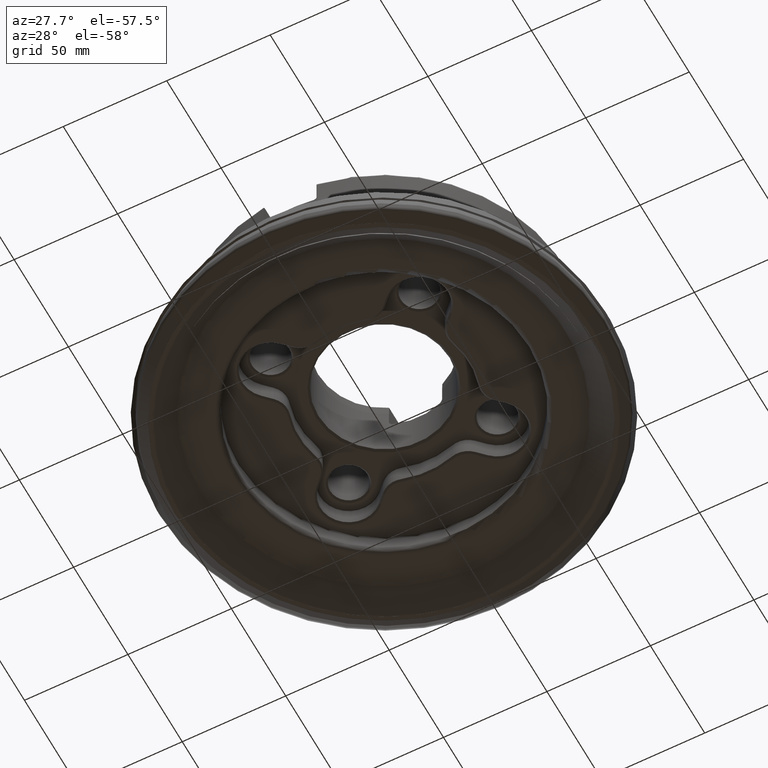
[diagram: clean part render]
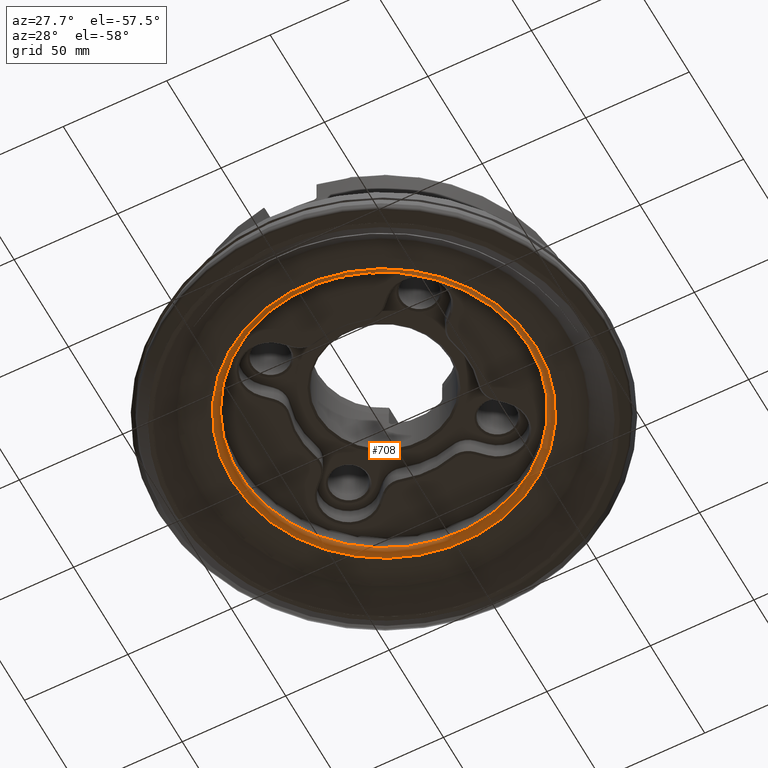
[diagram: same view with one face highlighted and labeled with its STEP entity id]
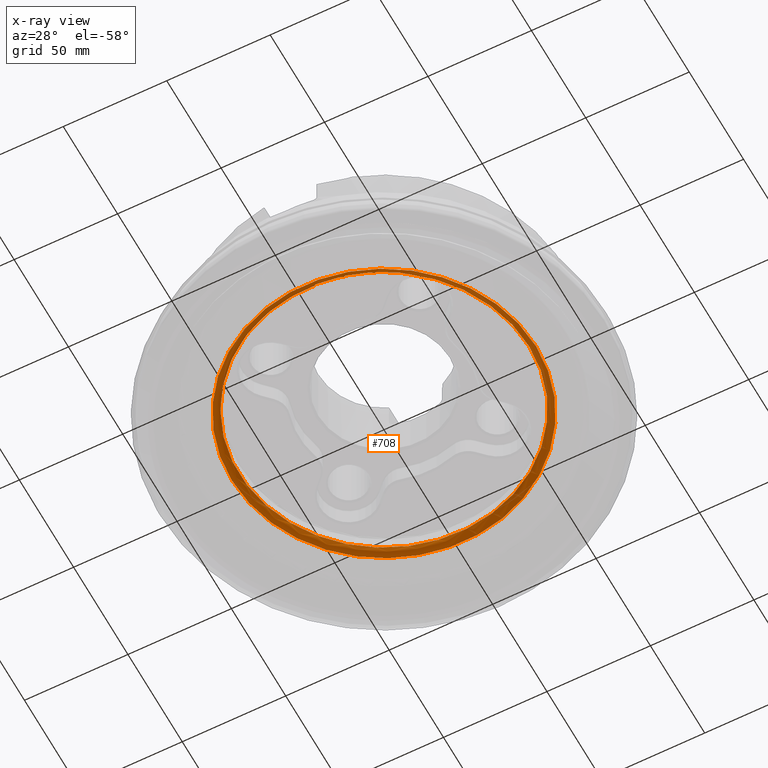
[diagram: x-ray of the same camera — body ghosted, the highlighted face saturated]
A machine part, auxiliary view. The second image highlights one B-rep face of the part: STEP entity #708.
The next image is the same camera in x-ray: the body ghosted, the highlighted face saturated — about 0% of this face is hidden behind the body in this view.
In plain terms, the highlighted toroidal blend (fillet) surface has major radius 73 mm and minor (blend) radius 3 mm.
Its self-contained STEP definition (entity closure, byte-faithful):
#201=TOROIDAL_SURFACE('',#2891,73.,3.);
#708=ADVANCED_FACE('',(#864,#865),#201,.T.);
#864=FACE_BOUND('',#1102,.T.);
#865=FACE_BOUND('',#1103,.T.);
#1102=EDGE_LOOP('',(#1714));
#1103=EDGE_LOOP('',(#1715));
#1714=ORIENTED_EDGE('',*,*,#2301,.F.);
#1715=ORIENTED_EDGE('',*,*,#2114,.F.);
#1881=VERTEX_POINT('',#4290);
#1990=VERTEX_POINT('',#4734);
#2114=EDGE_CURVE('',#1881,#1881,#2387,.T.);
#2301=EDGE_CURVE('',#1990,#1990,#2486,.T.);
#2387=CIRCLE('',#2682,70.);
#2486=CIRCLE('',#2869,73.4542413182045);
#2682=AXIS2_PLACEMENT_3D('',#4289,#3082,#3083);
#2869=AXIS2_PLACEMENT_3D('',#4733,#3540,#3541);
#2891=AXIS2_PLACEMENT_3D('',#4770,#3588,#3589);
#3082=DIRECTION('',(-1.17145536458252E-15,0.,-1.));
#3083=DIRECTION('',(1.,0.,-1.16474290529871E-15));
#3540=DIRECTION('',(1.17145536458252E-15,0.,1.));
#3541=DIRECTION('',(1.,0.,-1.18081913640764E-15));
#3588=DIRECTION('',(1.17145536458252E-15,0.,1.));
#3589=DIRECTION('',(1.,0.,-1.16409075361602E-15));
#4289=CARTESIAN_POINT('',(1.31156166228962E-14,0.,11.1960020154675));
#4290=CARTESIAN_POINT('',(70.,0.,11.1960020154674));
#4733=CARTESIAN_POINT('',(9.64176951958794E-15,0.,8.23059060643255));
#4734=CARTESIAN_POINT('',(73.4542413182045,0.,8.23059060643246));
#4770=CARTESIAN_POINT('',(1.31156166228962E-14,0.,11.1960020154675));